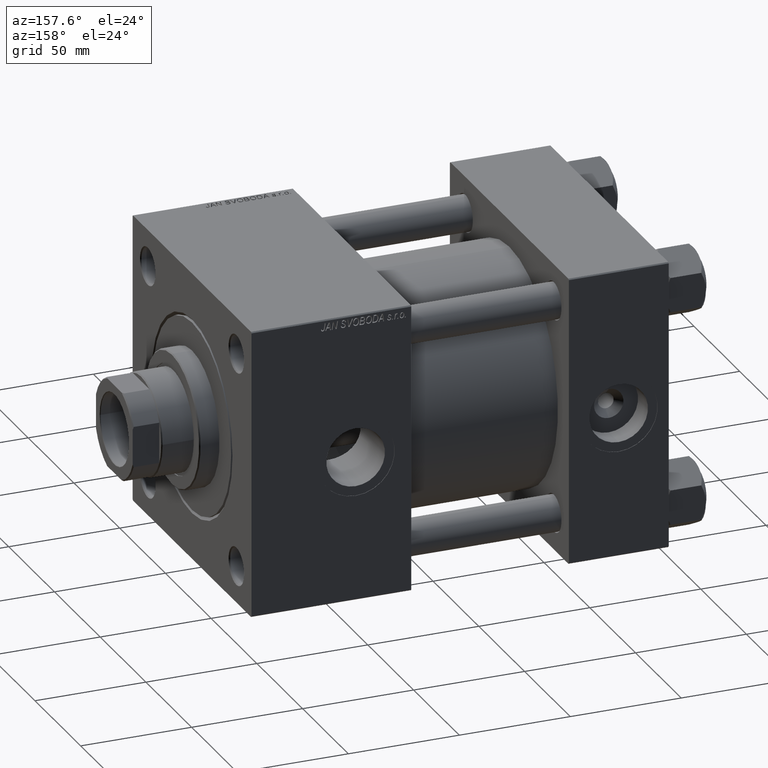
[diagram: clean part render]
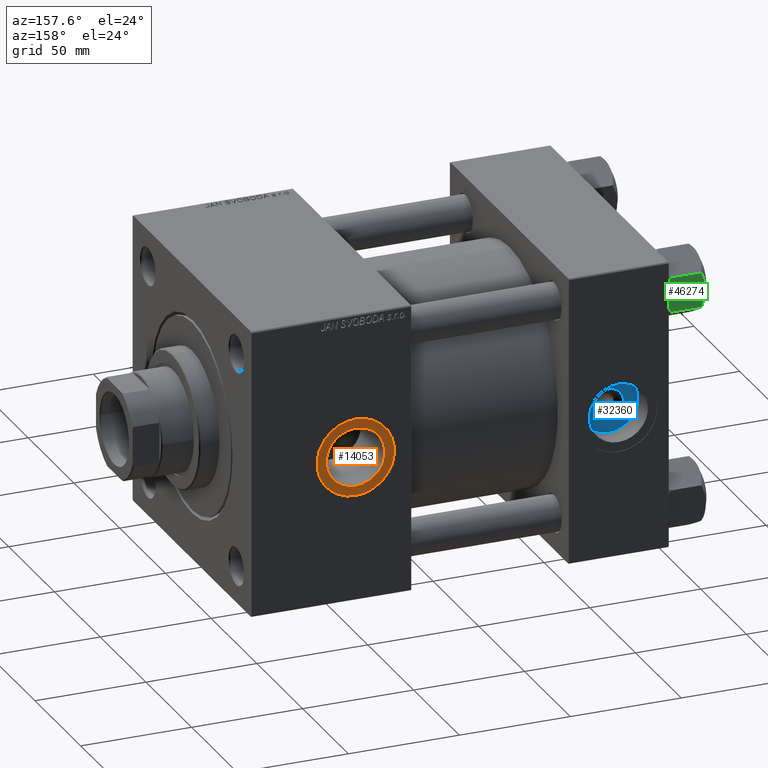
[diagram: same view with three faces highlighted in distinct colors, each labeled with its STEP entity id]
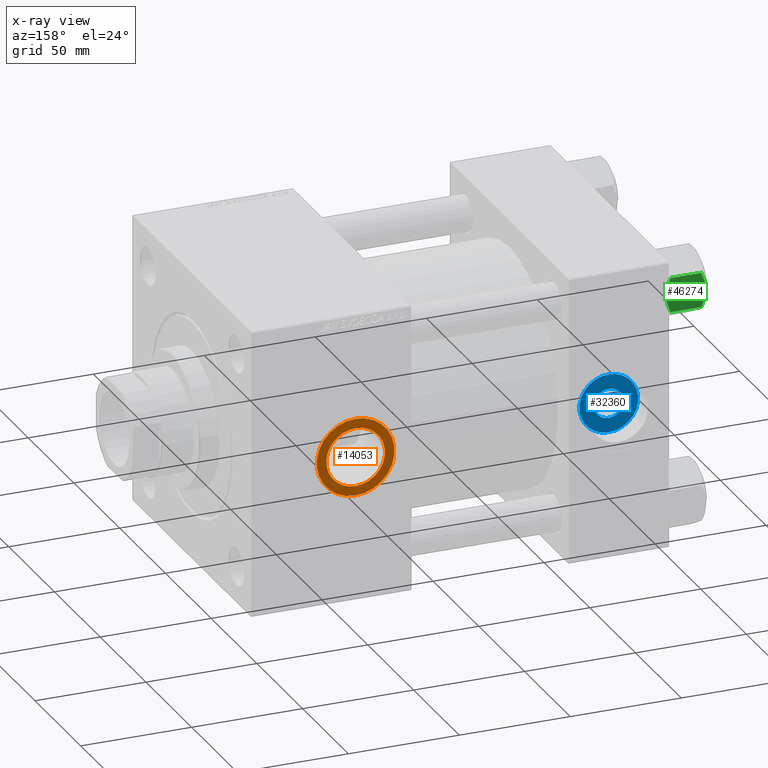
[diagram: x-ray of the same camera — body ghosted, the three highlighted faces saturated]
A machine part, auxiliary view with three faces highlighted in distinct colors.
The next image is the same camera in x-ray (body ghosted, the three faces saturated) — at least one of them is partly hidden behind the body in this view.
Their STEP definitions:

[orange] entity #14053 — the highlighted planar face has unit normal (0, 1, 0).
#341 = AXIS2_PLACEMENT_3D ( 'NONE', #36248, #40106, #926 ) ;
#373 = CARTESIAN_POINT ( 'NONE',  ( 141.0000000000000000, 64.80000000000002558, 0.000000000000000000 ) ) ;
#926 = DIRECTION ( 'NONE',  ( 0.000000000000000000, -0.000000000000000000, 1.000000000000000000 ) ) ;
#1779 = DIRECTION ( 'NONE',  ( 0.000000000000000000, 0.000000000000000000, 1.000000000000000000 ) ) ;
#3287 = CARTESIAN_POINT ( 'NONE',  ( 141.0000000000000000, 64.80000000000002558, -13.22000000000001307 ) ) ;
#3945 = VERTEX_POINT ( 'NONE', #19028 ) ;
#4358 = AXIS2_PLACEMENT_3D ( 'NONE', #44635, #5453, #16484 ) ;
#5453 = DIRECTION ( 'NONE',  ( 0.000000000000000000, 1.000000000000000000, 0.000000000000000000 ) ) ;
#5540 = CIRCLE ( 'NONE', #15382, 13.22000000000001307 ) ;
#6855 = AXIS2_PLACEMENT_3D ( 'NONE', #36849, #13848, #1779 ) ;
#7556 = DIRECTION ( 'NONE',  ( 0.000000000000000000, 0.000000000000000000, 1.000000000000000000 ) ) ;
#7745 = CIRCLE ( 'NONE', #20023, 13.22000000000001307 ) ;
#8825 = EDGE_CURVE ( 'NONE', #3945, #9519, #33782, .T. ) ;
#9338 = VERTEX_POINT ( 'NONE', #23276 ) ;
#9519 = VERTEX_POINT ( 'NONE', #10456 ) ;
#10456 = CARTESIAN_POINT ( 'NONE',  ( 141.0000000000000000, 64.80000000000002558, -17.49999999999999289 ) ) ;
#12798 = ORIENTED_EDGE ( 'NONE', *, *, #35671, .T. ) ;
#12945 = DIRECTION ( 'NONE',  ( 0.000000000000000000, 0.000000000000000000, 1.000000000000000000 ) ) ;
#13848 = DIRECTION ( 'NONE',  ( 0.000000000000000000, 1.000000000000000000, 0.000000000000000000 ) ) ;
#14053 = ADVANCED_FACE ( 'NONE', ( #20653, #35999 ), #39846, .T. ) ;
#15021 = EDGE_CURVE ( 'NONE', #33359, #9338, #7745, .T. ) ;
#15382 = AXIS2_PLACEMENT_3D ( 'NONE', #373, #40304, #12945 ) ;
#16484 = DIRECTION ( 'NONE',  ( 0.000000000000000000, 0.000000000000000000, 1.000000000000000000 ) ) ;
#19028 = CARTESIAN_POINT ( 'NONE',  ( 141.0000000000000000, 64.80000000000002558, 17.49999999999999289 ) ) ;
#20023 = AXIS2_PLACEMENT_3D ( 'NONE', #22916, #38519, #7556 ) ;
#20653 = FACE_BOUND ( 'NONE', #33180, .T. ) ;
#20690 = EDGE_LOOP ( 'NONE', ( #40681, #12798 ) ) ;
#22854 = ORIENTED_EDGE ( 'NONE', *, *, #23638, .F. ) ;
#22916 = CARTESIAN_POINT ( 'NONE',  ( 141.0000000000000000, 64.80000000000002558, 0.000000000000000000 ) ) ;
#23276 = CARTESIAN_POINT ( 'NONE',  ( 141.0000000000000000, 64.80000000000002558, 13.22000000000001307 ) ) ;
#23638 = EDGE_CURVE ( 'NONE', #9338, #33359, #5540, .T. ) ;
#33015 = CIRCLE ( 'NONE', #6855, 17.49999999999999289 ) ;
#33106 = ORIENTED_EDGE ( 'NONE', *, *, #15021, .F. ) ;
#33180 = EDGE_LOOP ( 'NONE', ( #22854, #33106 ) ) ;
#33359 = VERTEX_POINT ( 'NONE', #3287 ) ;
#33782 = CIRCLE ( 'NONE', #4358, 17.49999999999999289 ) ;
#35671 = EDGE_CURVE ( 'NONE', #9519, #3945, #33015, .T. ) ;
#35999 = FACE_OUTER_BOUND ( 'NONE', #20690, .T. ) ;
#36248 = CARTESIAN_POINT ( 'NONE',  ( 141.0000000000000000, 64.80000000000002558, 0.000000000000000000 ) ) ;
#36849 = CARTESIAN_POINT ( 'NONE',  ( 141.0000000000000000, 64.80000000000002558, 0.000000000000000000 ) ) ;
#38519 = DIRECTION ( 'NONE',  ( 0.000000000000000000, 1.000000000000000000, 0.000000000000000000 ) ) ;
#39846 = PLANE ( 'NONE',  #341 ) ;
#40106 = DIRECTION ( 'NONE',  ( 0.000000000000000000, 1.000000000000000000, 0.000000000000000000 ) ) ;
#40304 = DIRECTION ( 'NONE',  ( 0.000000000000000000, 1.000000000000000000, 0.000000000000000000 ) ) ;
#40681 = ORIENTED_EDGE ( 'NONE', *, *, #8825, .T. ) ;
#44635 = CARTESIAN_POINT ( 'NONE',  ( 141.0000000000000000, 64.80000000000002558, 0.000000000000000000 ) ) ;

[blue] entity #32360 — the highlighted planar face has unit normal (0, 1, 0).
#1313 = EDGE_CURVE ( 'NONE', #17466, #13636, #46654, .T. ) ;
#2043 = FACE_BOUND ( 'NONE', #35345, .T. ) ;
#2539 = PLANE ( 'NONE',  #25590 ) ;
#6389 = CARTESIAN_POINT ( 'NONE',  ( 22.50000000000000000, 53.99999999999999289, 0.000000000000000000 ) ) ;
#9674 = CARTESIAN_POINT ( 'NONE',  ( 22.50000000000000000, 53.99999999999999289, 0.000000000000000000 ) ) ;
#10760 = CARTESIAN_POINT ( 'NONE',  ( 22.50000000000000000, 53.99999999999999289, -13.22000000000000419 ) ) ;
#11896 = DIRECTION ( 'NONE',  ( -0.000000000000000000, -1.000000000000000000, -0.000000000000000000 ) ) ;
#12617 = AXIS2_PLACEMENT_3D ( 'NONE', #9674, #25292, #37043 ) ;
#13636 = VERTEX_POINT ( 'NONE', #10760 ) ;
#14966 = EDGE_LOOP ( 'NONE', ( #21160, #23468 ) ) ;
#15980 = VERTEX_POINT ( 'NONE', #48527 ) ;
#16792 = DIRECTION ( 'NONE',  ( 0.000000000000000000, 0.000000000000000000, 1.000000000000000000 ) ) ;
#16996 = CIRCLE ( 'NONE', #40698, 6.640000000000062741 ) ;
#17466 = VERTEX_POINT ( 'NONE', #48617 ) ;
#17592 = AXIS2_PLACEMENT_3D ( 'NONE', #41091, #21640, #16792 ) ;
#20414 = VERTEX_POINT ( 'NONE', #32991 ) ;
#21160 = ORIENTED_EDGE ( 'NONE', *, *, #1313, .T. ) ;
#21640 = DIRECTION ( 'NONE',  ( 0.000000000000000000, 1.000000000000000000, 0.000000000000000000 ) ) ;
#22496 = DIRECTION ( 'NONE',  ( 0.000000000000000000, -0.000000000000000000, 1.000000000000000000 ) ) ;
#23468 = ORIENTED_EDGE ( 'NONE', *, *, #37318, .T. ) ;
#25292 = DIRECTION ( 'NONE',  ( -0.000000000000000000, -1.000000000000000000, -0.000000000000000000 ) ) ;
#25590 = AXIS2_PLACEMENT_3D ( 'NONE', #6389, #49393, #22496 ) ;
#25699 = CIRCLE ( 'NONE', #12617, 6.640000000000062741 ) ;
#26995 = DIRECTION ( 'NONE',  ( 0.000000000000000000, 0.000000000000000000, 1.000000000000000000 ) ) ;
#32360 = ADVANCED_FACE ( 'NONE', ( #2043, #34261 ), #2539, .T. ) ;
#32991 = CARTESIAN_POINT ( 'NONE',  ( 22.50000000000000000, 53.99999999999999289, -6.640000000000062741 ) ) ;
#33687 = ORIENTED_EDGE ( 'NONE', *, *, #47613, .T. ) ;
#34154 = CARTESIAN_POINT ( 'NONE',  ( 22.50000000000000000, 53.99999999999999289, 0.000000000000000000 ) ) ;
#34240 = ORIENTED_EDGE ( 'NONE', *, *, #35984, .T. ) ;
#34261 = FACE_OUTER_BOUND ( 'NONE', #14966, .T. ) ;
#35345 = EDGE_LOOP ( 'NONE', ( #33687, #34240 ) ) ;
#35984 = EDGE_CURVE ( 'NONE', #20414, #15980, #25699, .T. ) ;
#37043 = DIRECTION ( 'NONE',  ( 0.000000000000000000, 0.000000000000000000, 1.000000000000000000 ) ) ;
#37318 = EDGE_CURVE ( 'NONE', #13636, #17466, #47022, .T. ) ;
#38034 = DIRECTION ( 'NONE',  ( 0.000000000000000000, 1.000000000000000000, 0.000000000000000000 ) ) ;
#38462 = AXIS2_PLACEMENT_3D ( 'NONE', #45966, #38034, #41637 ) ;
#40698 = AXIS2_PLACEMENT_3D ( 'NONE', #34154, #11896, #26995 ) ;
#41091 = CARTESIAN_POINT ( 'NONE',  ( 22.50000000000000000, 53.99999999999999289, 0.000000000000000000 ) ) ;
#41637 = DIRECTION ( 'NONE',  ( 0.000000000000000000, 0.000000000000000000, 1.000000000000000000 ) ) ;
#45966 = CARTESIAN_POINT ( 'NONE',  ( 22.50000000000000000, 53.99999999999999289, 0.000000000000000000 ) ) ;
#46654 = CIRCLE ( 'NONE', #38462, 13.22000000000000419 ) ;
#47022 = CIRCLE ( 'NONE', #17592, 13.22000000000000419 ) ;
#47613 = EDGE_CURVE ( 'NONE', #15980, #20414, #16996, .T. ) ;
#48527 = CARTESIAN_POINT ( 'NONE',  ( 22.50000000000000000, 53.99999999999999289, 6.640000000000062741 ) ) ;
#48617 = CARTESIAN_POINT ( 'NONE',  ( 22.50000000000000000, 53.99999999999999289, 13.22000000000000419 ) ) ;
#49393 = DIRECTION ( 'NONE',  ( 0.000000000000000000, 1.000000000000000000, 0.000000000000000000 ) ) ;

[green] entity #46274 — the highlighted planar face has unit normal (0, -1, 0).
#691 = CARTESIAN_POINT ( 'NONE',  ( -7.809999999999996945, 13.52731680711293727, -16.00000000000000000 ) ) ;
#1740 = CARTESIAN_POINT ( 'NONE',  ( -1.663410456966174955, 13.52731680711293905, -0.09804949135699160545 ) ) ;
#1946 = B_SPLINE_CURVE_WITH_KNOTS ( 'NONE', 3,
 ( #20273, #47409, #23603, #15186, #35359, #39717, #43551, #42547, #31262, #3626, #27702, #7744 ),
 .UNSPECIFIED., .F., .F.,
 ( 4, 2, 2, 2, 2, 4 ),
 ( 0.02774433486126544682, 0.02873404020403548184, 0.02972374554680551340, 0.03170315623234558344, 0.03368256691788565349, 0.03566197760342572354 ),
 .UNSPECIFIED. ) ;
#3626 = CARTESIAN_POINT ( 'NONE',  ( 6.422751913021802039, 13.52731680711294260, -16.56349088907410660 ) ) ;
#4384 = CARTESIAN_POINT ( 'NONE',  ( -7.622943475354648335, 13.52731680711293727, -2.000000000000000000 ) ) ;
#4803 = CARTESIAN_POINT ( 'NONE',  ( -7.809999999999996945, 13.52731680711293727, -16.00000000000000000 ) ) ;
#4820 = CARTESIAN_POINT ( 'NONE',  ( -7.622943475354648335, 13.52731680711293727, -2.000000000000000000 ) ) ;
#5097 = VECTOR ( 'NONE', #11043, 1000.000000000000000 ) ;
#5325 = CARTESIAN_POINT ( 'NONE',  ( 7.810000000000001386, 13.52731680711293905, -18.00000000000000000 ) ) ;
#5622 = CARTESIAN_POINT ( 'NONE',  ( 7.030888348548061551, 13.52731680711294082, -1.709337883550299697 ) ) ;
#6167 = ORIENTED_EDGE ( 'NONE', *, *, #24253, .F. ) ;
#7399 = DIRECTION ( 'NONE',  ( 1.000000000000000000, 1.110578409716265846E-16, 0.000000000000000000 ) ) ;
#7698 = CARTESIAN_POINT ( 'NONE',  ( 7.810000000000000497, 13.52731680711293905, -16.00000000000000000 ) ) ;
#7727 = ORIENTED_EDGE ( 'NONE', *, *, #47077, .F. ) ;
#7744 = CARTESIAN_POINT ( 'NONE',  ( 7.622943475354622578, 13.52731680711293727, -16.00000000000000000 ) ) ;
#8318 = ORIENTED_EDGE ( 'NONE', *, *, #22852, .F. ) ;
#8942 = DIRECTION ( 'NONE',  ( -0.000000000000000000, -0.000000000000000000, 1.000000000000000000 ) ) ;
#9189 = CARTESIAN_POINT ( 'NONE',  ( -7.030203932307583337, 13.52731680711293372, -1.709001877891392907 ) ) ;
#9946 = EDGE_CURVE ( 'NONE', #39510, #24746, #1946, .T. ) ;
#11009 = CARTESIAN_POINT ( 'NONE',  ( -1.502314598737160017E-15, 13.52731680711293727, 0.000000000000000000 ) ) ;
#11043 = DIRECTION ( 'NONE',  ( -1.000000000000000000, -1.110578409716265846E-16, 0.000000000000000000 ) ) ;
#11120 = ORIENTED_EDGE ( 'NONE', *, *, #16516, .F. ) ;
#11721 = DIRECTION ( 'NONE',  ( 1.000000000000000000, 1.110578409716265846E-16, 0.000000000000000000 ) ) ;
#12092 = ORIENTED_EDGE ( 'NONE', *, *, #31993, .F. ) ;
#13316 = LINE ( 'NONE', #36319, #31401 ) ;
#13331 = CARTESIAN_POINT ( 'NONE',  ( 2.638177715023106717, 13.52731680711294260, -0.2001540676698861931 ) ) ;
#13462 = VECTOR ( 'NONE', #43049, 1000.000000000000000 ) ;
#13573 = VERTEX_POINT ( 'NONE', #11009 ) ;
#13585 = CARTESIAN_POINT ( 'NONE',  ( 1.335584685993415732, 13.52731680711294260, -9.825582188149885905E-16 ) ) ;
#14264 = CARTESIAN_POINT ( 'NONE',  ( 7.810000000000000497, 13.52731680711293905, -1.999999999999998224 ) ) ;
#14497 = CARTESIAN_POINT ( 'NONE',  ( -7.809999999999996945, 13.52731680711293727, -1.999999999999998224 ) ) ;
#14503 = EDGE_CURVE ( 'NONE', #41054, #36841, #13316, .T. ) ;
#14996 = CARTESIAN_POINT ( 'NONE',  ( -7.030888348548044675, 13.52731680711294082, -16.29066211644970252 ) ) ;
#15186 = CARTESIAN_POINT ( 'NONE',  ( 1.333889873825127248, 13.52731680711293549, -17.93843358996559090 ) ) ;
#16025 = ORIENTED_EDGE ( 'NONE', *, *, #40323, .T. ) ;
#16174 = CARTESIAN_POINT ( 'NONE',  ( -1.502314598737160017E-15, 13.52731680711293727, -18.00000000000000000 ) ) ;
#16516 = EDGE_CURVE ( 'NONE', #13573, #19126, #42512, .T. ) ;
#16867 = CARTESIAN_POINT ( 'NONE',  ( -5.184073258379408244, 13.52731680711293727, -0.9481437906500859158 ) ) ;
#16905 = CARTESIAN_POINT ( 'NONE',  ( 7.622943475354644782, 13.52731680711293727, -2.000000000000000000 ) ) ;
#17376 = CARTESIAN_POINT ( 'NONE',  ( -4.557734399832416905, 13.52731680711293905, -0.7341470174115153347 ) ) ;
#18031 = ORIENTED_EDGE ( 'NONE', *, *, #27593, .F. ) ;
#18677 = CARTESIAN_POINT ( 'NONE',  ( -7.809999999999996945, 13.52731680711293727, -18.00000000000000000 ) ) ;
#19126 = VERTEX_POINT ( 'NONE', #4384 ) ;
#19767 = LINE ( 'NONE', #35871, #13462 ) ;
#19853 = VERTEX_POINT ( 'NONE', #26439 ) ;
#19902 = LINE ( 'NONE', #691, #48870 ) ;
#20273 = CARTESIAN_POINT ( 'NONE',  ( -1.502314598737160017E-15, 13.52731680711293727, -18.00000000000000000 ) ) ;
#20993 = CARTESIAN_POINT ( 'NONE',  ( 6.427364677720470709, 13.52731680711294082, -1.438506937155140442 ) ) ;
#21889 = ORIENTED_EDGE ( 'NONE', *, *, #14503, .F. ) ;
#22619 = CARTESIAN_POINT ( 'NONE',  ( 7.622943475354622578, 13.52731680711293727, -16.00000000000000000 ) ) ;
#22852 = EDGE_CURVE ( 'NONE', #24746, #35391, #19902, .T. ) ;
#23154 = EDGE_CURVE ( 'NONE', #19853, #39510, #34101, .T. ) ;
#23603 = CARTESIAN_POINT ( 'NONE',  ( 0.6693083573771171357, 13.52731680711294082, -17.98750666918890673 ) ) ;
#24253 = EDGE_CURVE ( 'NONE', #36841, #13573, #49265, .T. ) ;
#24746 = VERTEX_POINT ( 'NONE', #22619 ) ;
#25336 = VECTOR ( 'NONE', #48135, 1000.000000000000000 ) ;
#25563 = CARTESIAN_POINT ( 'NONE',  ( -0.6693083573771214656, 13.52731680711293727, -0.01249333081108175945 ) ) ;
#25971 = VECTOR ( 'NONE', #8942, 1000.000000000000000 ) ;
#26013 = CARTESIAN_POINT ( 'NONE',  ( -2.638177715023100056, 13.52731680711293905, -17.79984593233010770 ) ) ;
#26439 = CARTESIAN_POINT ( 'NONE',  ( -7.622943475354626131, 13.52731680711293727, -16.00000000000000000 ) ) ;
#27593 = EDGE_CURVE ( 'NONE', #42023, #19853, #44547, .T. ) ;
#27702 = CARTESIAN_POINT ( 'NONE',  ( 7.030203932307562908, 13.52731680711294260, -16.29099812210860065 ) ) ;
#29399 = CARTESIAN_POINT ( 'NONE',  ( -1.502314598737160017E-15, 13.52731680711293727, 0.000000000000000000 ) ) ;
#30426 = PLANE ( 'NONE',  #50452 ) ;
#30579 = CARTESIAN_POINT ( 'NONE',  ( -6.427364677720452946, 13.52731680711293905, -16.56149306284485334 ) ) ;
#31262 = CARTESIAN_POINT ( 'NONE',  ( 5.184073258379385152, 13.52731680711294260, -17.05185620934991064 ) ) ;
#31401 = VECTOR ( 'NONE', #36063, 1000.000000000000000 ) ;
#31993 = EDGE_CURVE ( 'NONE', #19126, #50212, #38411, .T. ) ;
#32096 = ORIENTED_EDGE ( 'NONE', *, *, #9946, .F. ) ;
#32198 = CARTESIAN_POINT ( 'NONE',  ( -2.644243758052991389, 13.52731680711293905, -0.2408281198023998759 ) ) ;
#34101 = B_SPLINE_CURVE_WITH_KNOTS ( 'NONE', 3,
 ( #50053, #14996, #30579, #45465, #46208, #26013, #41621, #38517 ),
 .UNSPECIFIED., .F., .F.,
 ( 4, 2, 2, 4 ),
 ( 0.01980594295952730829, 0.02179054093496184119, 0.02377513891039637409, 0.02774433486126544682 ),
 .UNSPECIFIED. ) ;
#35359 = CARTESIAN_POINT ( 'NONE',  ( 1.663410456966167184, 13.52731680711293905, -17.90195050864299375 ) ) ;
#35391 = VERTEX_POINT ( 'NONE', #7698 ) ;
#35871 = CARTESIAN_POINT ( 'NONE',  ( -7.809999999999996945, 13.52731680711293727, -18.00000000000000000 ) ) ;
#36063 = DIRECTION ( 'NONE',  ( -1.000000000000000000, -1.110578409716265846E-16, 0.000000000000000000 ) ) ;
#36319 = CARTESIAN_POINT ( 'NONE',  ( -7.809999999999996945, 13.52731680711293727, -1.999999999999998224 ) ) ;
#36813 = CARTESIAN_POINT ( 'NONE',  ( -0.3330234424833839468, 13.52731680711293727, -8.499975625696903903E-16 ) ) ;
#36841 = VERTEX_POINT ( 'NONE', #48083 ) ;
#38365 = DIRECTION ( 'NONE',  ( 1.110578409716265846E-16, -1.000000000000000000, 0.000000000000000000 ) ) ;
#38411 = LINE ( 'NONE', #41266, #5097 ) ;
#38517 = CARTESIAN_POINT ( 'NONE',  ( -1.502314598737160017E-15, 13.52731680711293727, -18.00000000000000000 ) ) ;
#39510 = VERTEX_POINT ( 'NONE', #16174 ) ;
#39548 = ORIENTED_EDGE ( 'NONE', *, *, #23154, .F. ) ;
#39717 = CARTESIAN_POINT ( 'NONE',  ( 2.644243758052981175, 13.52731680711294082, -17.75917188019759507 ) ) ;
#40323 = EDGE_CURVE ( 'NONE', #42023, #50212, #19767, .T. ) ;
#41054 = VERTEX_POINT ( 'NONE', #14264 ) ;
#41266 = CARTESIAN_POINT ( 'NONE',  ( -7.809999999999996945, 13.52731680711293727, -1.999999999999998224 ) ) ;
#41621 = CARTESIAN_POINT ( 'NONE',  ( -1.335584685993412180, 13.52731680711293549, -17.99999999999998224 ) ) ;
#42023 = VERTEX_POINT ( 'NONE', #4803 ) ;
#42512 = B_SPLINE_CURVE_WITH_KNOTS ( 'NONE', 3,
 ( #29399, #36813, #25563, #48346, #1740, #32198, #45008, #17376, #16867, #43991, #9189, #4820 ),
 .UNSPECIFIED., .F., .F.,
 ( 4, 2, 2, 2, 2, 4 ),
 ( 0.02774433486126545723, 0.02873404020403549572, 0.02972374554680553421, 0.03170315623234561120, 0.03368256691788568125, 0.03566197760342575823 ),
 .UNSPECIFIED. ) ;
#42547 = CARTESIAN_POINT ( 'NONE',  ( 4.557734399832398253, 13.52731680711293905, -17.26585298258848056 ) ) ;
#43049 = DIRECTION ( 'NONE',  ( -0.000000000000000000, -0.000000000000000000, 1.000000000000000000 ) ) ;
#43551 = CARTESIAN_POINT ( 'NONE',  ( 3.287826776903140402, 13.52731680711293905, -17.61954155462465721 ) ) ;
#43991 = CARTESIAN_POINT ( 'NONE',  ( -6.422751913021828685, 13.52731680711293905, -1.436509110925899391 ) ) ;
#44031 = CARTESIAN_POINT ( 'NONE',  ( -7.809999999999996945, 13.52731680711293727, -16.00000000000000000 ) ) ;
#44247 = LINE ( 'NONE', #5325, #25971 ) ;
#44547 = LINE ( 'NONE', #44031, #25336 ) ;
#45008 = CARTESIAN_POINT ( 'NONE',  ( -3.287826776903158166, 13.52731680711293905, -0.3804584453753378503 ) ) ;
#45284 = CARTESIAN_POINT ( 'NONE',  ( -1.502314598737160017E-15, 13.52731680711293727, 0.000000000000000000 ) ) ;
#45465 = CARTESIAN_POINT ( 'NONE',  ( -5.189513245496315541, 13.52731680711293727, -17.04988915682673678 ) ) ;
#46208 = CARTESIAN_POINT ( 'NONE',  ( -4.553769687922292420, 13.52731680711293905, -17.26727080048547691 ) ) ;
#46274 = ADVANCED_FACE ( 'NONE', ( #50664 ), #30426, .F. ) ;
#47077 = EDGE_CURVE ( 'NONE', #35391, #41054, #44247, .T. ) ;
#47409 = CARTESIAN_POINT ( 'NONE',  ( 0.3330234424833806162, 13.52731680711293905, -17.99999999999998579 ) ) ;
#48083 = CARTESIAN_POINT ( 'NONE',  ( 7.622943475354644782, 13.52731680711293727, -2.000000000000000000 ) ) ;
#48135 = DIRECTION ( 'NONE',  ( 1.000000000000000000, 1.110578409716265846E-16, 0.000000000000000000 ) ) ;
#48180 = EDGE_LOOP ( 'NONE', ( #18031, #16025, #12092, #11120, #6167, #21889, #7727, #8318, #32096, #39548 ) ) ;
#48346 = CARTESIAN_POINT ( 'NONE',  ( -1.333889873825134353, 13.52731680711293905, -0.06156641003439419085 ) ) ;
#48382 = CARTESIAN_POINT ( 'NONE',  ( 4.553769687922307519, 13.52731680711294260, -0.7327291995145179815 ) ) ;
#48870 = VECTOR ( 'NONE', #11721, 1000.000000000000000 ) ;
#48898 = CARTESIAN_POINT ( 'NONE',  ( 5.189513245496327976, 13.52731680711294082, -0.9501108431732597781 ) ) ;
#49265 = B_SPLINE_CURVE_WITH_KNOTS ( 'NONE', 3,
 ( #16905, #5622, #20993, #48898, #48382, #13331, #13585, #45284 ),
 .UNSPECIFIED., .F., .F.,
 ( 4, 2, 2, 4 ),
 ( 0.01980594295952729095, 0.02179054093496183425, 0.02377513891039637409, 0.02774433486126545723 ),
 .UNSPECIFIED. ) ;
#50053 = CARTESIAN_POINT ( 'NONE',  ( -7.622943475354626131, 13.52731680711293727, -16.00000000000000000 ) ) ;
#50212 = VERTEX_POINT ( 'NONE', #14497 ) ;
#50452 = AXIS2_PLACEMENT_3D ( 'NONE', #18677, #38365, #7399 ) ;
#50664 = FACE_OUTER_BOUND ( 'NONE', #48180, .T. ) ;